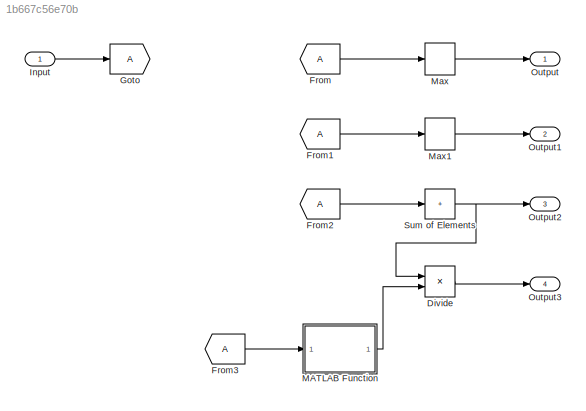
MODEL slx_1b667c56e70b
KIND model
CONFIG AbsTol = auto
CONFIG EnableMultiTasking = off
CONFIG FixedStep = auto
CONFIG MaxStep = auto
CONFIG MinStep = auto
CONFIG RelTol = 1e-3
CONFIG SampleTimeConstraint = Unconstrained
CONFIG SolverName = VariableStepAuto
CONFIG StartTime = 0.0
CONFIG StopTime = 10.0
BLOCK [Product] Divide
  Inputs = */
  Ports = [2, 1]
BLOCK [From] From
BLOCK [From] From1
BLOCK [From] From2
BLOCK [From] From3
BLOCK [Goto] Goto
BLOCK [Inport] Input
  PortDimensions = 4
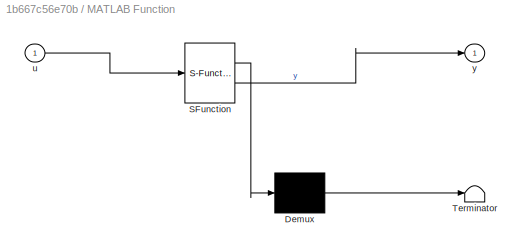
BLOCK [SubSystem] MATLAB Function
  ErrorFcn = Stateflow.Translate.translate
  PermitHierarchicalResolution = ExplicitOnly
  Ports = [1, 1]
  RequestExecContextInheritance = off
  SFBlockType = MATLAB Function
  TreatAsAtomicUnit = on
BLOCK [Demux] MATLAB Function/ Demux 
  Outputs = 1
  Ports = [1, 1]
BLOCK [S-Function] MATLAB Function/ SFunction 
  EnableBusSupport = on
  FunctionName = sf_sfun
  PortCounts = [1 2]
  Ports = [1, 2]
  SFcnIsStateOwnerBlock = off
  SFunctionDeploymentMode = off
  Tag = Stateflow S-Function 2
BLOCK [Terminator] MATLAB Function/ Terminator 
BLOCK [Inport] MATLAB Function/u
BLOCK [Outport] MATLAB Function/y
BLOCK [MinMax] Max
  Function = max
  Ports = [1, 1]
BLOCK [MinMax] Max1
  Ports = [1, 1]
BLOCK [Outport] Output
BLOCK [Outport] Output1
  Port = 2
BLOCK [Outport] Output2
  Port = 3
BLOCK [Outport] Output3
  Port = 4
BLOCK [Sum] Sum of Elements
  IconShape = rectangular
  Inputs = +
  Ports = [1, 1]
LINE Divide:1 -> Output3:1
LINE From1:1 -> Max1:1
LINE From2:1 -> Sum of Elements:1
LINE From3:1 -> MATLAB Function:1
LINE From:1 -> Max:1
LINE Input:1 -> Goto:1
LINE MATLAB Function:1 -> Divide:2
LINE Max1:1 -> Output1:1
LINE Max:1 -> Output:1
NET Sum of Elements:1 -> Divide:1, Output2:1
note: NET lines group one-source signal fan-out (src -> all destinations, sorted); 1:1 wires keep LINE
CHART MATLAB Function states=1 transitions=1
  STATE_LABEL 'eML_blk_kernel()'
  STATE_LABEL 'SCRIPT:\nfunction y = No_of_Elements(u)\n\ny = numel(u);\n'
CHART  states=0 transitions=0
